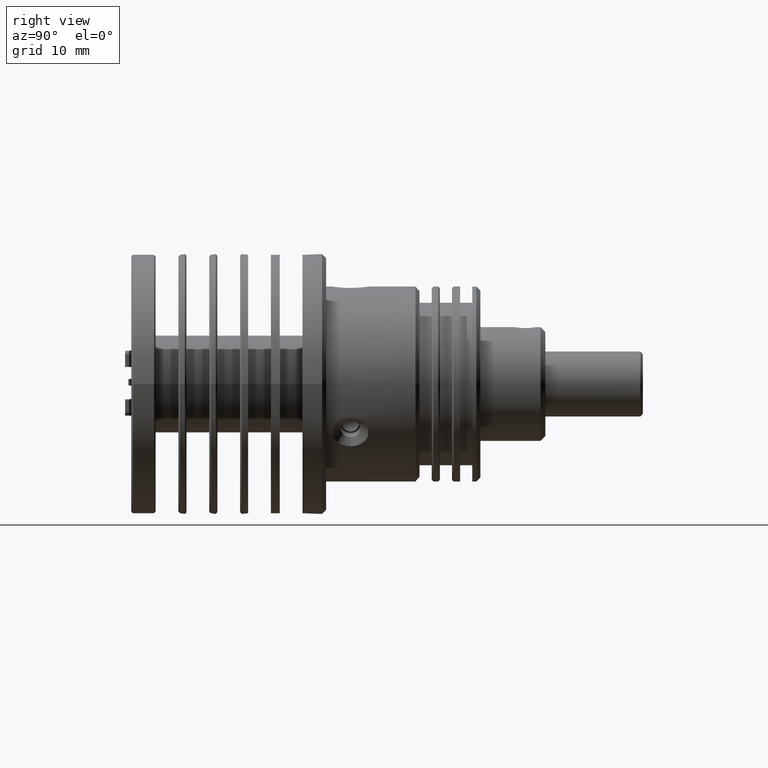
[diagram: clean part render]
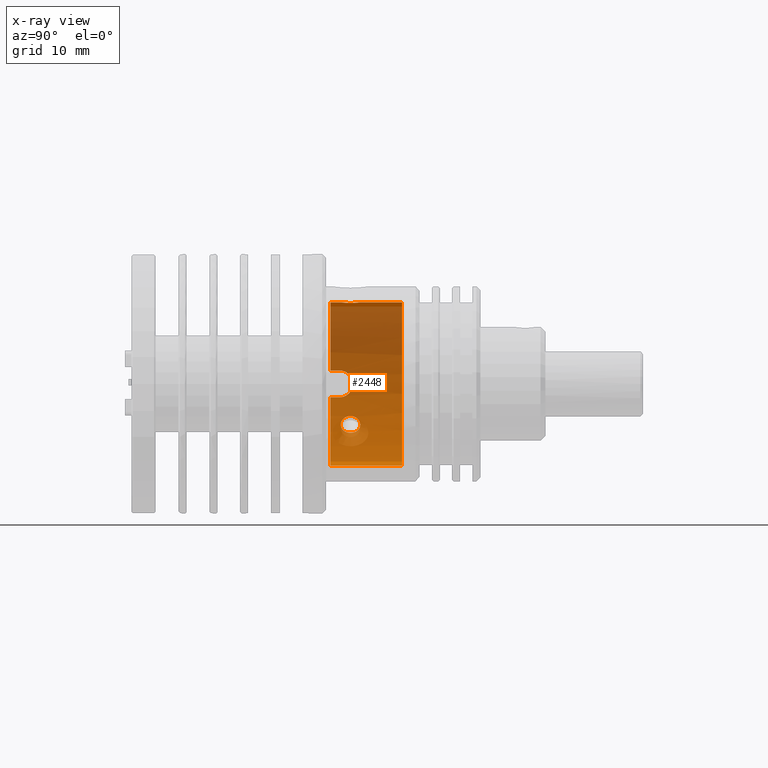
[diagram: x-ray — body ghosted, one internal face saturated and labeled with its STEP entity id]
A machine part, right view, then the same camera in x-ray: the body is ghosted and one INTERNAL B-rep face — a face not visible from any outside direction — is saturated and labeled: STEP entity #2448.
In plain terms, the highlighted cylindrical surface (partial cylindrical patch) has radius 10.05 mm, axis along (-0, -1, -0).
Its self-contained STEP definition (entity closure, byte-faithful):
#152 = VECTOR ( 'NONE', #9095, 1000.000000000000000 ) ;
#274 = CARTESIAN_POINT ( 'NONE',  ( -6.568978985980402600, -11.97697143207793700, -13.34580724105953700 ) ) ;
#342 = CARTESIAN_POINT ( 'NONE',  ( -5.466355178716337800, -12.71493551001260200, -15.20231691706952600 ) ) ;
#382 = DIRECTION ( 'NONE',  ( -0.0000000000000000000, -1.000000000000000000, -0.0000000000000000000 ) ) ;
#509 = ORIENTED_EDGE ( 'NONE', *, *, #7305, .T. ) ;
#686 = EDGE_LOOP ( 'NONE', ( #15065, #10152 ) ) ;
#929 = EDGE_CURVE ( 'NONE', #11037, #7434, #19199, .T. ) ;
#990 = CARTESIAN_POINT ( 'NONE',  ( -7.338693197479165600, -14.06493551001259600, -7.524035921659380400 ) ) ;
#1022 = CARTESIAN_POINT ( 'NONE',  ( -6.049848818757931600, -13.91482184658483100, -14.33544709965094400 ) ) ;
#1042 = VERTEX_POINT ( 'NONE', #11534 ) ;
#1050 = CARTESIAN_POINT ( 'NONE',  ( -7.389214611088064500, -13.05884726845567400, -7.861825288794522100 ) ) ;
#1116 = CARTESIAN_POINT ( 'NONE',  ( -7.389365098990664300, -13.05739233161789900, -10.48509927012492900 ) ) ;
#1365 = CARTESIAN_POINT ( 'NONE',  ( 1.406852632066896400, -12.39873483527562600, 0.8080341236212339500 ) ) ;
#1562 = CARTESIAN_POINT ( 'NONE',  ( -7.338693197479165600, -15.21493551001260700, -7.524035921659381300 ) ) ;
#1776 = CARTESIAN_POINT ( 'NONE',  ( -6.415873048750138500, -11.66642266347083300, -13.66722738292203600 ) ) ;
#2089 = EDGE_CURVE ( 'NONE', #3384, #11593, #9659, .T. ) ;
#2202 = ORIENTED_EDGE ( 'NONE', *, *, #13038, .F. ) ;
#2303 = CARTESIAN_POINT ( 'NONE',  ( 2.574933787635818900, -6.364935510012617900, -9.174035921659385200 ) ) ;
#2448 = ADVANCED_FACE ( 'NONE', ( #10150, #2510 ), #16690, .F. ) ;
#2479 = CARTESIAN_POINT ( 'NONE',  ( -5.466355178716337800, -12.71493551001260200, -15.20231691706952600 ) ) ;
#2510 = FACE_OUTER_BOUND ( 'NONE', #11893, .T. ) ;
#2549 = CARTESIAN_POINT ( 'NONE',  ( -6.281872470877417000, -13.88399231775494500, -13.92594686885759400 ) ) ;
#2573 = CARTESIAN_POINT ( 'NONE',  ( -7.424870113386497800, -12.74628547507355200, -8.159238505694842700 ) ) ;
#2633 = CARTESIAN_POINT ( 'NONE',  ( -7.365227484519424600, -13.33232449772937000, -10.65641609366932800 ) ) ;
#2779 = CARTESIAN_POINT ( 'NONE',  ( 1.406191172012213100, -13.02918513185847100, 0.8079582818856230200 ) ) ;
#2887 = CARTESIAN_POINT ( 'NONE',  ( 1.374933787635822300, -12.71493551001260200, 0.8040651000781711100 ) ) ;
#2946 = VERTEX_POINT ( 'NONE', #9928 ) ;
#2967 = AXIS2_PLACEMENT_3D ( 'NONE', #18794, #382, #15729 ) ;
#3081 = AXIS2_PLACEMENT_3D ( 'NONE', #18235, #8982, #19795 ) ;
#3154 = ORIENTED_EDGE ( 'NONE', *, *, #929, .F. ) ;
#3303 = CARTESIAN_POINT ( 'NONE',  ( -6.207370715078661200, -11.51504917344037600, -14.06261117191884200 ) ) ;
#3384 = VERTEX_POINT ( 'NONE', #19903 ) ;
#3447 = ORIENTED_EDGE ( 'NONE', *, *, #12581, .T. ) ;
#3823 = DIRECTION ( 'NONE',  ( 0.0000000000000000000, 0.0000000000000000000, -1.000000000000000000 ) ) ;
#4064 = LINE ( 'NONE', #7090, #15771 ) ;
#4105 = CARTESIAN_POINT ( 'NONE',  ( -6.473767911919308600, -13.67591120761814400, -13.54852334957712000 ) ) ;
#4130 = CARTESIAN_POINT ( 'NONE',  ( -7.467650233290799000, -12.45865961743912600, -8.739831268502014100 ) ) ;
#4198 = CARTESIAN_POINT ( 'NONE',  ( -7.338693197479167400, -13.84655211439876200, -10.82403592165938700 ) ) ;
#4327 = CARTESIAN_POINT ( 'NONE',  ( 1.615622311087150600, -13.45260555257315000, 0.8306889001285554500 ) ) ;
#4455 = CARTESIAN_POINT ( 'NONE',  ( -7.338693197479165600, -14.06493551001259600, -10.82403592165938700 ) ) ;
#4477 = VERTEX_POINT ( 'NONE', #16291 ) ;
#4844 = CARTESIAN_POINT ( 'NONE',  ( -5.968744938415772700, -11.54587870227026200, -14.46829966432983000 ) ) ;
#5464 = VERTEX_POINT ( 'NONE', #17785 ) ;
#5600 = CARTESIAN_POINT ( 'NONE',  ( -6.605344204822058500, -13.32020805548128800, -13.26410623631160000 ) ) ;
#5622 = CARTESIAN_POINT ( 'NONE',  ( -7.475079701769062400, -12.41485334725023300, -9.280565353595015700 ) ) ;
#5835 = CARTESIAN_POINT ( 'NONE',  ( 1.970253601796777300, -13.76315245715159100, 0.8587957160093557800 ) ) ;
#5874 = LINE ( 'NONE', #12948, #17654 ) ;
#5886 = CARTESIAN_POINT ( 'NONE',  ( 2.416316450176763600, -11.51493551001260900, 0.8759640783406166300 ) ) ;
#6131 = EDGE_CURVE ( 'NONE', #15096, #14613, #5874, .T. ) ;
#6147 = B_SPLINE_CURVE_WITH_KNOTS ( 'NONE', 3,
 ( #15422, #6290, #18625, #9370, #274, #10921, #1776, #12452, #3303, #14001, #4844, #15544, #6359, #17120, #7896, #18691, #9446, #342 ),
 .UNSPECIFIED., .F., .F.,
 ( 4, 2, 2, 2, 2, 2, 2, 2, 4 ),
 ( 0.0000000000000000000, 0.0004692797284497117600, 0.0009385594568994235100, 0.001407839185349135300, 0.001877118913798847000, 0.002346398642248558600, 0.002815678370698270500, 0.003284958099147982500, 0.003754237827597694000 ),
 .UNSPECIFIED. ) ;
#6158 = ORIENTED_EDGE ( 'NONE', *, *, #2089, .F. ) ;
#6290 = CARTESIAN_POINT ( 'NONE',  ( -6.666355178716347800, -12.55624557464355800, -13.12385594798687900 ) ) ;
#6308 = ORIENTED_EDGE ( 'NONE', *, *, #17609, .T. ) ;
#6359 = CARTESIAN_POINT ( 'NONE',  ( -5.737834303254101300, -11.75395981240705900, -14.82319775078275900 ) ) ;
#6799 = CARTESIAN_POINT ( 'NONE',  ( 2.574933787635819800, -13.91493551001259900, 0.8759640783406168500 ) ) ;
#7053 = CARTESIAN_POINT ( 'NONE',  ( -5.557196582325330400, -13.31987878702463300, -15.07951046641033900 ) ) ;
#7073 = VECTOR ( 'NONE', #8399, 1000.000000000000000 ) ;
#7081 = CARTESIAN_POINT ( 'NONE',  ( -7.340496232750094700, -13.84841425600036600, -7.534767627290008800 ) ) ;
#7084 = CARTESIAN_POINT ( 'NONE',  ( 2.574933787635818900, -15.21493551001261000, -9.174035921659385200 ) ) ;
#7090 = CARTESIAN_POINT ( 'NONE',  ( 2.574933787635819800, -38.96480397725189000, 0.8759640783406168500 ) ) ;
#7126 = CARTESIAN_POINT ( 'NONE',  ( -6.666355178716348600, -12.87362574196554200, -13.12385594798688100 ) ) ;
#7149 = CARTESIAN_POINT ( 'NONE',  ( -7.466516011806267400, -12.46770474733876500, -9.601828051349853500 ) ) ;
#7305 = EDGE_CURVE ( 'NONE', #4477, #1042, #13317, .T. ) ;
#7350 = CARTESIAN_POINT ( 'NONE',  ( 2.416318049454509300, -13.91493551001259900, 0.8759640783406169600 ) ) ;
#7398 = CARTESIAN_POINT ( 'NONE',  ( 2.260683748645345500, -11.54619280607507100, 0.8721016758425723700 ) ) ;
#7434 = VERTEX_POINT ( 'NONE', #1562 ) ;
#7547 = CARTESIAN_POINT ( 'NONE',  ( -7.338693197479165600, -38.96480397725189000, -10.82403592165939100 ) ) ;
#7896 = CARTESIAN_POINT ( 'NONE',  ( -5.557310004346492200, -12.10966296454391000, -15.07935471960508200 ) ) ;
#8271 = VERTEX_POINT ( 'NONE', #16689 ) ;
#8342 = CARTESIAN_POINT ( 'NONE',  ( 2.574933787635818900, -6.364935510012617900, -19.22403592165938900 ) ) ;
#8399 = DIRECTION ( 'NONE',  ( -0.0000000000000000000, -1.000000000000000000, -0.0000000000000000000 ) ) ;
#8600 = CARTESIAN_POINT ( 'NONE',  ( -5.736696479637443800, -13.67406030897681300, -14.82484285987790400 ) ) ;
#8627 = CARTESIAN_POINT ( 'NONE',  ( -7.352483975841132700, -13.53243828485321900, -7.608586010175440800 ) ) ;
#8630 = DIRECTION ( 'NONE',  ( 0.0000000000000000000, 0.0000000000000000000, -1.000000000000000000 ) ) ;
#8693 = CARTESIAN_POINT ( 'NONE',  ( -7.442679612202145000, -12.62297017581122400, -10.00474284703834500 ) ) ;
#8698 = LINE ( 'NONE', #7547, #152 ) ;
#8954 = CARTESIAN_POINT ( 'NONE',  ( 1.837260044285978100, -11.75562682605704600, 0.8494690128560509200 ) ) ;
#8982 = DIRECTION ( 'NONE',  ( 0.0000000000000000000, -1.000000000000000000, 0.0000000000000000000 ) ) ;
#9095 = DIRECTION ( 'NONE',  ( 0.0000000000000000000, 1.000000000000000000, 0.0000000000000000000 ) ) ;
#9217 = B_SPLINE_CURVE_WITH_KNOTS ( 'NONE', 3,
 ( #10383, #19525, #2779, #13442, #4327, #15023, #5835, #16580, #7350, #18160 ),
 .UNSPECIFIED., .F., .F.,
 ( 4, 2, 2, 2, 4 ),
 ( 3.469446951953614200E-018, 0.0004690655186282194300, 0.0009381310372564353800, 0.001407196555884651300, 0.001876262074512867300 ),
 .UNSPECIFIED. ) ;
#9370 = CARTESIAN_POINT ( 'NONE',  ( -6.605422374501385400, -12.10999223300056800, -13.26393013655729900 ) ) ;
#9446 = CARTESIAN_POINT ( 'NONE',  ( -5.466355178716338700, -12.55624587122690800, -15.20231691706952600 ) ) ;
#9659 = CIRCLE ( 'NONE', #16454, 10.05000000000000400 ) ;
#9851 = AXIS2_PLACEMENT_3D ( 'NONE', #7084, #17889, #8630 ) ;
#9928 = CARTESIAN_POINT ( 'NONE',  ( -5.466355178716337800, -12.71493551001260200, -15.20231691706952600 ) ) ;
#10077 = CARTESIAN_POINT ( 'NONE',  ( -5.466355178716337800, -12.87362544538163400, -15.20231691706952400 ) ) ;
#10150 = FACE_BOUND ( 'NONE', #686, .T. ) ;
#10152 = ORIENTED_EDGE ( 'NONE', *, *, #18228, .T. ) ;
#10159 = CARTESIAN_POINT ( 'NONE',  ( -5.967476270804382900, -13.88321315329882900, -14.47031834145420800 ) ) ;
#10189 = CARTESIAN_POINT ( 'NONE',  ( -7.372718291776806200, -13.23804849774932400, -7.742125252744237700 ) ) ;
#10196 = ORIENTED_EDGE ( 'NONE', *, *, #6131, .T. ) ;
#10254 = CARTESIAN_POINT ( 'NONE',  ( -7.398213353866208500, -12.97430351788353200, -10.41694598351344500 ) ) ;
#10383 = CARTESIAN_POINT ( 'NONE',  ( 1.374933787635822300, -12.71493551001260200, 0.8040651000781711100 ) ) ;
#10477 = VECTOR ( 'NONE', #19047, 1000.000000000000000 ) ;
#10494 = CARTESIAN_POINT ( 'NONE',  ( 1.526715360699865600, -12.11025825549473500, 0.8213317106148657600 ) ) ;
#10921 = CARTESIAN_POINT ( 'NONE',  ( -6.474623706379373000, -11.75581071104839200, -13.54671541087249800 ) ) ;
#11037 = VERTEX_POINT ( 'NONE', #17821 ) ;
#11138 = ORIENTED_EDGE ( 'NONE', *, *, #12671, .T. ) ;
#11158 = LINE ( 'NONE', #19155, #7073 ) ;
#11166 = EDGE_CURVE ( 'NONE', #14613, #7434, #12839, .T. ) ;
#11402 = EDGE_CURVE ( 'NONE', #8271, #2946, #6147, .T. ) ;
#11534 = CARTESIAN_POINT ( 'NONE',  ( 1.374933787635822300, -12.71493551001260200, 0.8040651000781711100 ) ) ;
#11593 = VERTEX_POINT ( 'NONE', #8342 ) ;
#11668 = ORIENTED_EDGE ( 'NONE', *, *, #17542, .T. ) ;
#11710 = CARTESIAN_POINT ( 'NONE',  ( -6.206525877578719100, -13.91504854518255900, -14.06412861035747500 ) ) ;
#11733 = CARTESIAN_POINT ( 'NONE',  ( -7.398237154016385400, -12.97414286456995600, -7.931373726140625600 ) ) ;
#11792 = CARTESIAN_POINT ( 'NONE',  ( -7.372907676438079400, -13.23581504310088200, -10.60462657288267400 ) ) ;
#11893 = EDGE_LOOP ( 'NONE', ( #6158, #3447, #509, #11138, #10196, #17771, #3154, #6308, #13632, #11668, #2202 ) ) ;
#11975 = CARTESIAN_POINT ( 'NONE',  ( 2.574933787635819800, -11.51493551001260600, 0.8759640783406168500 ) ) ;
#12045 = CARTESIAN_POINT ( 'NONE',  ( 1.374933787635823000, -12.55631965701777200, 0.8040651000781711100 ) ) ;
#12220 = CARTESIAN_POINT ( 'NONE',  ( -7.338693197479163800, -38.96480397725189000, -7.524035921659376000 ) ) ;
#12282 = CARTESIAN_POINT ( 'NONE',  ( -7.338693197479165600, -15.21493551001260700, -10.82403592165938900 ) ) ;
#12441 = CIRCLE ( 'NONE', #9851, 10.05000000000000400 ) ;
#12452 = CARTESIAN_POINT ( 'NONE',  ( -6.282986362743471900, -11.54665786672637800, -13.92383883191498500 ) ) ;
#12581 = EDGE_CURVE ( 'NONE', #3384, #4477, #4064, .T. ) ;
#12671 = EDGE_CURVE ( 'NONE', #1042, #15096, #9217, .T. ) ;
#12839 = CIRCLE ( 'NONE', #3081, 10.05000000000000400 ) ;
#12948 = CARTESIAN_POINT ( 'NONE',  ( 2.574933787635819800, -38.96480397725189000, 0.8759640783406168500 ) ) ;
#12952 = DIRECTION ( 'NONE',  ( -0.0000000000000000000, -1.000000000000000000, -0.0000000000000000000 ) ) ;
#13038 = EDGE_CURVE ( 'NONE', #11593, #5464, #11158, .T. ) ;
#13167 = CARTESIAN_POINT ( 'NONE',  ( -7.338693197479169200, -13.95574385449566700, -7.524035921659384800 ) ) ;
#13215 = CARTESIAN_POINT ( 'NONE',  ( -6.415738092996187800, -13.76379263471105200, -13.66753054007769600 ) ) ;
#13240 = CARTESIAN_POINT ( 'NONE',  ( -7.442620261398961800, -12.62340245419140300, -8.342989368895324300 ) ) ;
#13312 = CARTESIAN_POINT ( 'NONE',  ( -7.346160411477386600, -13.63162127861400900, -10.78071518511396600 ) ) ;
#13317 = B_SPLINE_CURVE_WITH_KNOTS ( 'NONE', 3,
 ( #11975, #5886, #7398, #18208, #8954, #19769, #10494, #1365, #12045, #2887 ),
 .UNSPECIFIED., .F., .F.,
 ( 4, 2, 2, 2, 4 ),
 ( -0.001876242604753247200, -0.001407181953564934400, -0.0009381213023766218800, -0.0004690606511883093100, 3.469446951953614200E-018 ),
 .UNSPECIFIED. ) ;
#13347 = B_SPLINE_CURVE_WITH_KNOTS ( 'NONE', 3,
 ( #990, #13167, #7081, #17880, #8627, #19450, #10189, #1050, #11733, #2573, #13240, #4130, #14815, #5622, #16371, #7149, #17952, #8693, #19517, #10254, #1116, #11792, #2633, #13312, #4198, #14873 ),
 .UNSPECIFIED., .F., .F.,
 ( 4, 2, 2, 2, 2, 2, 2, 2, 2, 2, 2, 2, 4 ),
 ( 0.0000000000000000000, 0.0003228820284595866100, 0.0006457640569191732100, 0.0009686460853787598200, 0.001291528113838346400, 0.001937292170757515900, 0.002583056227676685500, 0.002905938256136267400, 0.003228820284595849400, 0.003874584341515014100, 0.004197466369974595600, 0.004520348398434177600, 0.005166112455353339700 ),
 .UNSPECIFIED. ) ;
#13442 = CARTESIAN_POINT ( 'NONE',  ( 1.526573199099196400, -13.31962733467051900, 0.8213183820951343000 ) ) ;
#13632 = ORIENTED_EDGE ( 'NONE', *, *, #16637, .F. ) ;
#14001 = CARTESIAN_POINT ( 'NONE',  ( -6.050740540244494700, -11.51482247484264600, -14.33395672969460600 ) ) ;
#14555 = CARTESIAN_POINT ( 'NONE',  ( 2.574933787635819800, -15.21493551001261000, 0.8759640783406186200 ) ) ;
#14613 = VERTEX_POINT ( 'NONE', #14555 ) ;
#14787 = CARTESIAN_POINT ( 'NONE',  ( -6.569374516041861500, -13.45212676505741500, -13.34497926241979500 ) ) ;
#14815 = CARTESIAN_POINT ( 'NONE',  ( -7.475038994684490800, -12.41510129047262000, -8.957181816383242200 ) ) ;
#14873 = CARTESIAN_POINT ( 'NONE',  ( -7.338693197479165600, -14.06493551001259600, -10.82403592165938700 ) ) ;
#15023 = CARTESIAN_POINT ( 'NONE',  ( 1.836615958051839700, -13.67374851745861600, 0.8494207700840440400 ) ) ;
#15065 = ORIENTED_EDGE ( 'NONE', *, *, #11402, .T. ) ;
#15096 = VERTEX_POINT ( 'NONE', #6799 ) ;
#15422 = CARTESIAN_POINT ( 'NONE',  ( -6.666355178716347800, -12.71493551001259800, -13.12385594798688100 ) ) ;
#15544 = CARTESIAN_POINT ( 'NONE',  ( -5.811882643999053900, -11.66607838531415300, -14.71343885816804000 ) ) ;
#15729 = DIRECTION ( 'NONE',  ( 0.0000000000000000000, 0.0000000000000000000, -1.000000000000000000 ) ) ;
#15771 = VECTOR ( 'NONE', #17894, 1000.000000000000000 ) ;
#16070 = DIRECTION ( 'NONE',  ( -0.0000000000000000000, -1.000000000000000000, -0.0000000000000000000 ) ) ;
#16281 = CARTESIAN_POINT ( 'NONE',  ( -5.485373881898776300, -13.02933157241554700, -15.17716962208517200 ) ) ;
#16291 = CARTESIAN_POINT ( 'NONE',  ( 2.574933787635819800, -11.51493551001260600, 0.8759640783406168500 ) ) ;
#16344 = CARTESIAN_POINT ( 'NONE',  ( -6.654044539688083400, -13.02971820842193700, -13.15299787566088200 ) ) ;
#16371 = CARTESIAN_POINT ( 'NONE',  ( -7.473302003880093900, -12.42558363917539000, -9.390086052507031800 ) ) ;
#16454 = AXIS2_PLACEMENT_3D ( 'NONE', #2303, #12952, #3823 ) ;
#16580 = CARTESIAN_POINT ( 'NONE',  ( 2.258732613477388200, -13.88301671989337800, 0.8720262727735161900 ) ) ;
#16637 = EDGE_CURVE ( 'NONE', #17176, #19420, #8698, .T. ) ;
#16689 = CARTESIAN_POINT ( 'NONE',  ( -6.666355178716347800, -12.71493551001259800, -13.12385594798688100 ) ) ;
#16690 = CYLINDRICAL_SURFACE ( 'NONE', #2967, 10.05000000000000400 ) ;
#17040 = B_SPLINE_CURVE_WITH_KNOTS ( 'NONE', 3,
 ( #2479, #10077, #16281, #7053, #17846, #8600, #19422, #10159, #1022, #11710, #2549, #13215, #4105, #14787, #5600, #16344, #7126, #17924 ),
 .UNSPECIFIED., .F., .F.,
 ( 4, 2, 2, 2, 2, 2, 2, 2, 4 ),
 ( 0.003754237827597694000, 0.004223518433108780500, 0.004692799038619866100, 0.005162079644130951700, 0.005631360249642038100, 0.006100640855153124600, 0.006569921460664210200, 0.007039202066175295800, 0.007508482671686382200 ),
 .UNSPECIFIED. ) ;
#17120 = CARTESIAN_POINT ( 'NONE',  ( -5.609363255047017400, -11.97774425496778700, -15.00776754230111700 ) ) ;
#17176 = VERTEX_POINT ( 'NONE', #12282 ) ;
#17542 = EDGE_CURVE ( 'NONE', #17176, #5464, #12441, .T. ) ;
#17609 = EDGE_CURVE ( 'NONE', #11037, #19420, #13347, .T. ) ;
#17654 = VECTOR ( 'NONE', #16070, 1000.000000000000000 ) ;
#17771 = ORIENTED_EDGE ( 'NONE', *, *, #11166, .T. ) ;
#17785 = CARTESIAN_POINT ( 'NONE',  ( 2.574933787635818900, -15.21493551001261000, -19.22403592165938900 ) ) ;
#17821 = CARTESIAN_POINT ( 'NONE',  ( -7.338693197479165600, -14.06493551001259600, -7.524035921659380400 ) ) ;
#17846 = CARTESIAN_POINT ( 'NONE',  ( -5.609882540552092700, -13.45289958794726500, -15.00701101390006400 ) ) ;
#17880 = CARTESIAN_POINT ( 'NONE',  ( -7.347350738913798200, -13.63731512921351400, -7.576781150406857200 ) ) ;
#17889 = DIRECTION ( 'NONE',  ( 0.0000000000000000000, -1.000000000000000000, 0.0000000000000000000 ) ) ;
#17894 = DIRECTION ( 'NONE',  ( -0.0000000000000000000, -1.000000000000000000, -0.0000000000000000000 ) ) ;
#17924 = CARTESIAN_POINT ( 'NONE',  ( -6.666355178716347800, -12.71493551001259800, -13.12385594798688100 ) ) ;
#17952 = CARTESIAN_POINT ( 'NONE',  ( -7.461542917471012600, -12.49887800747371700, -9.704765046514477700 ) ) ;
#18160 = CARTESIAN_POINT ( 'NONE',  ( 2.574933787635819800, -13.91493551001259900, 0.8759640783406168500 ) ) ;
#18208 = CARTESIAN_POINT ( 'NONE',  ( 1.970238976856668800, -11.66657642037322900, 0.8588090338238142400 ) ) ;
#18228 = EDGE_CURVE ( 'NONE', #2946, #8271, #17040, .T. ) ;
#18235 = CARTESIAN_POINT ( 'NONE',  ( 2.574933787635818900, -15.21493551001261000, -9.174035921659385200 ) ) ;
#18625 = CARTESIAN_POINT ( 'NONE',  ( -6.654086334014651000, -12.40053944760966000, -13.15290027558209100 ) ) ;
#18691 = CARTESIAN_POINT ( 'NONE',  ( -5.485437508883137500, -12.40015281160326800, -15.17708462709722800 ) ) ;
#18794 = CARTESIAN_POINT ( 'NONE',  ( 2.574933787635818900, -38.96480397725189000, -9.174035921659385200 ) ) ;
#19047 = DIRECTION ( 'NONE',  ( -0.0000000000000000000, -1.000000000000000000, -0.0000000000000000000 ) ) ;
#19155 = CARTESIAN_POINT ( 'NONE',  ( 2.574933787635818900, -38.96480397725189000, -19.22403592165938900 ) ) ;
#19199 = LINE ( 'NONE', #12220, #10477 ) ;
#19420 = VERTEX_POINT ( 'NONE', #4455 ) ;
#19422 = CARTESIAN_POINT ( 'NONE',  ( -5.811687580077884400, -13.76344835655437000, -14.71370731185718000 ) ) ;
#19450 = CARTESIAN_POINT ( 'NONE',  ( -7.365196301838533800, -13.33273605639488000, -7.691446740433031300 ) ) ;
#19517 = CARTESIAN_POINT ( 'NONE',  ( -7.425150924389004800, -12.74396950269295900, -10.18634173709258000 ) ) ;
#19525 = CARTESIAN_POINT ( 'NONE',  ( 1.374933787635822100, -12.87355300896329500, 0.8040651000781708900 ) ) ;
#19769 = CARTESIAN_POINT ( 'NONE',  ( 1.616117523512674600, -11.97662184063268000, 0.8307371939857670600 ) ) ;
#19795 = DIRECTION ( 'NONE',  ( 0.0000000000000000000, 0.0000000000000000000, -1.000000000000000000 ) ) ;
#19903 = CARTESIAN_POINT ( 'NONE',  ( 2.574933787635819800, -6.364935510012617900, 0.8759640783406168500 ) ) ;